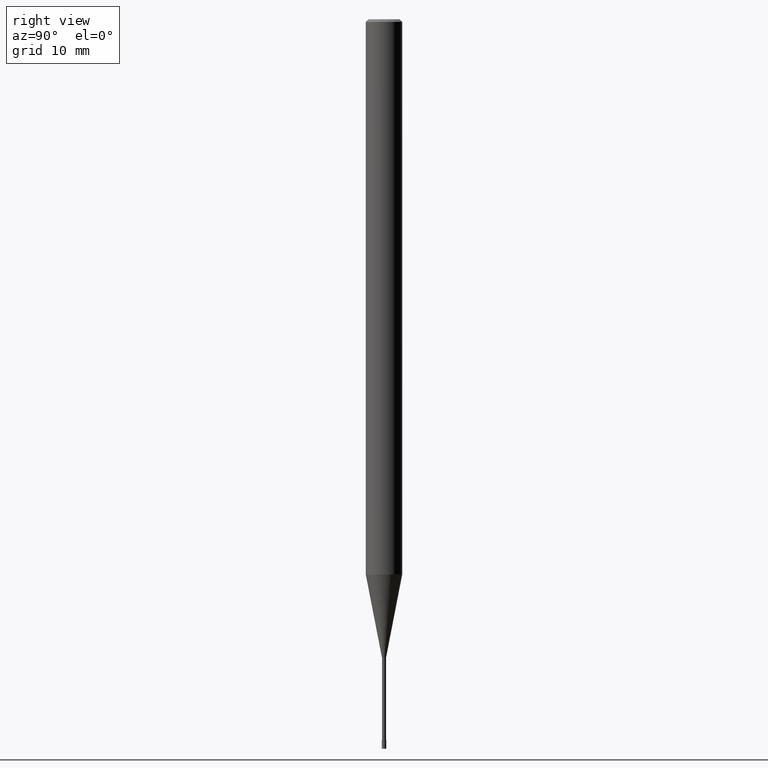
[diagram: clean part render]
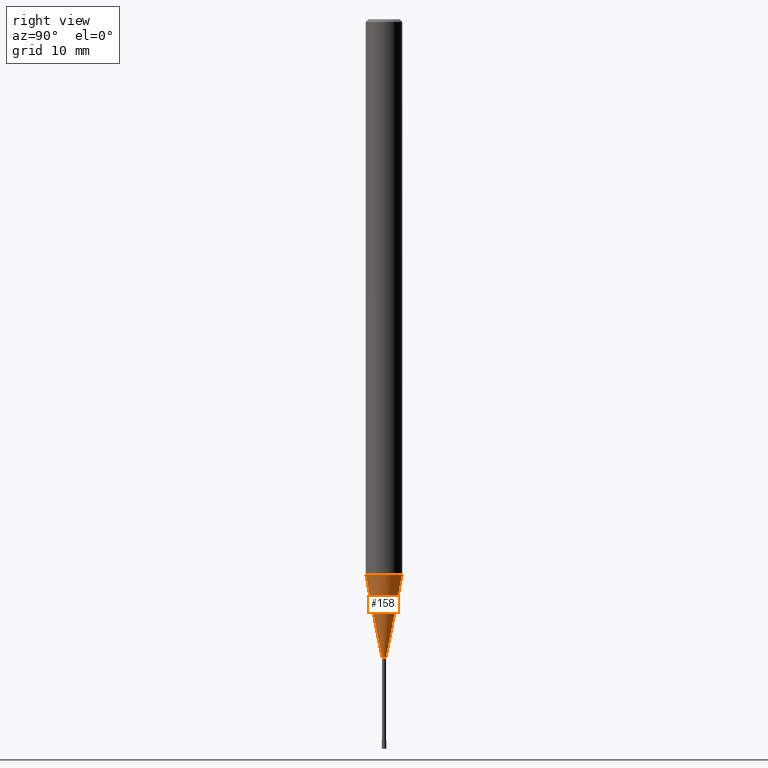
[diagram: same view with one face highlighted and labeled with its STEP entity id]
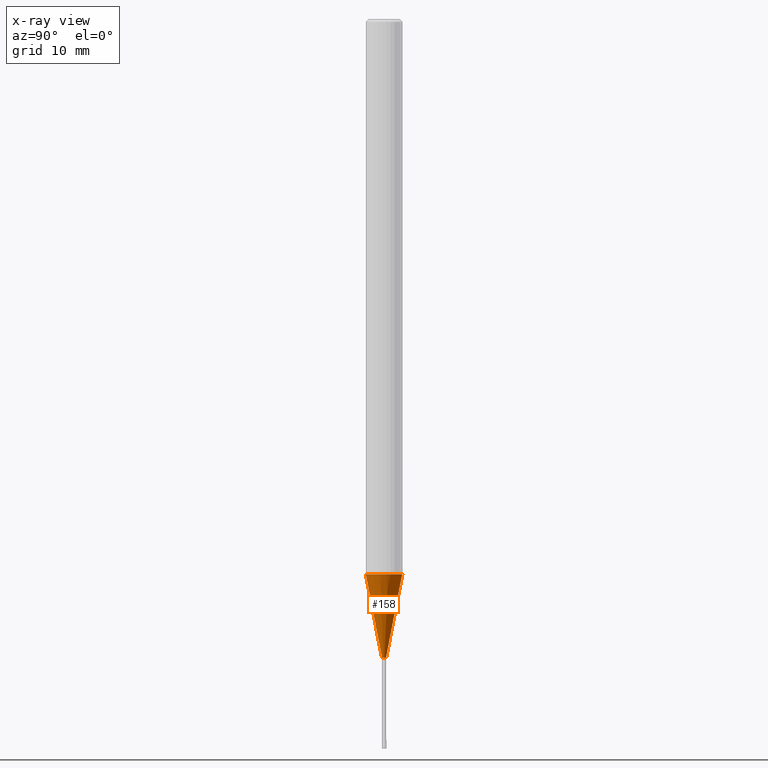
[diagram: x-ray of the same camera — body ghosted, the highlighted face saturated]
A machine part, right view. The second image highlights one B-rep face of the part: STEP entity #158.
The next image is the same camera in x-ray: the body ghosted, the highlighted face saturated — about 0% of this face is hidden behind the body in this view.
In plain terms, the highlighted conical surface has half-angle 11 deg.
Its self-contained STEP definition (entity closure, byte-faithful):
#116=EDGE_CURVE('',#190,#168,#258,.T.);
#124=EDGE_CURVE('',#182,#190,#268,.T.);
#158=ADVANCED_FACE('',(#304),#305,.T.);
#168=VERTEX_POINT('',#318);
#182=VERTEX_POINT('',#332);
#184=VERTEX_POINT('',#334);
#190=VERTEX_POINT('',#342);
#202=EDGE_CURVE('',#184,#168,#355,.T.);
#204=EDGE_CURVE('',#184,#182,#357,.T.);
#258=LINE('',#410,#411);
#268=CIRCLE('',#422,0.22495);
#304=FACE_OUTER_BOUND('',#471,.T.);
#305=CONICAL_SURFACE('',#472,1.11245,0.191977672522415);
#318=CARTESIAN_POINT('',(2.44915147732706E-016,-1.99995,-60.868));
#332=CARTESIAN_POINT('',(0.0,0.22495,-70.0));
#334=CARTESIAN_POINT('',(0.0,1.99995,-60.868));
#342=CARTESIAN_POINT('',(2.75475199292344E-017,-0.22495,-70.0));
#355=CIRCLE('',#532,1.99995);
#357=LINE('',#535,#536);
#410=CARTESIAN_POINT('',(1.3623133383097E-016,-1.11245,-65.434));
#411=VECTOR('',#583,1.0);
#422=AXIS2_PLACEMENT_3D('',#600,#601,#602);
#471=EDGE_LOOP('',(#640,#641,#642,#643));
#472=AXIS2_PLACEMENT_3D('',#644,#645,#646);
#532=AXIS2_PLACEMENT_3D('',#710,#711,#712);
#535=CARTESIAN_POINT('',(-1.3623133383097E-016,1.11245,-65.434));
#536=VECTOR('',#713,1.0);
#583=DIRECTION('',(2.33655635855942E-017,-0.190800607171954,0.981628813912272));
#600=CARTESIAN_POINT('',(0.0,0.0,-70.0));
#601=DIRECTION('',(0.0,0.0,-1.0));
#602=DIRECTION('',(0.0,1.0,0.0));
#640=ORIENTED_EDGE('',*,*,#204,.F.);
#641=ORIENTED_EDGE('',*,*,#202,.T.);
#642=ORIENTED_EDGE('',*,*,#116,.F.);
#643=ORIENTED_EDGE('',*,*,#124,.F.);
#644=CARTESIAN_POINT('',(0.0,0.0,-65.434));
#645=DIRECTION('',(-0.0,-0.0,1.0));
#646=DIRECTION('',(0.0,1.0,0.0));
#710=CARTESIAN_POINT('',(0.0,0.0,-60.868));
#711=DIRECTION('',(0.0,0.0,-1.0));
#712=DIRECTION('',(0.0,1.0,0.0));
#713=DIRECTION('',(2.33655635855942E-017,-0.190800607171954,-0.981628813912272));